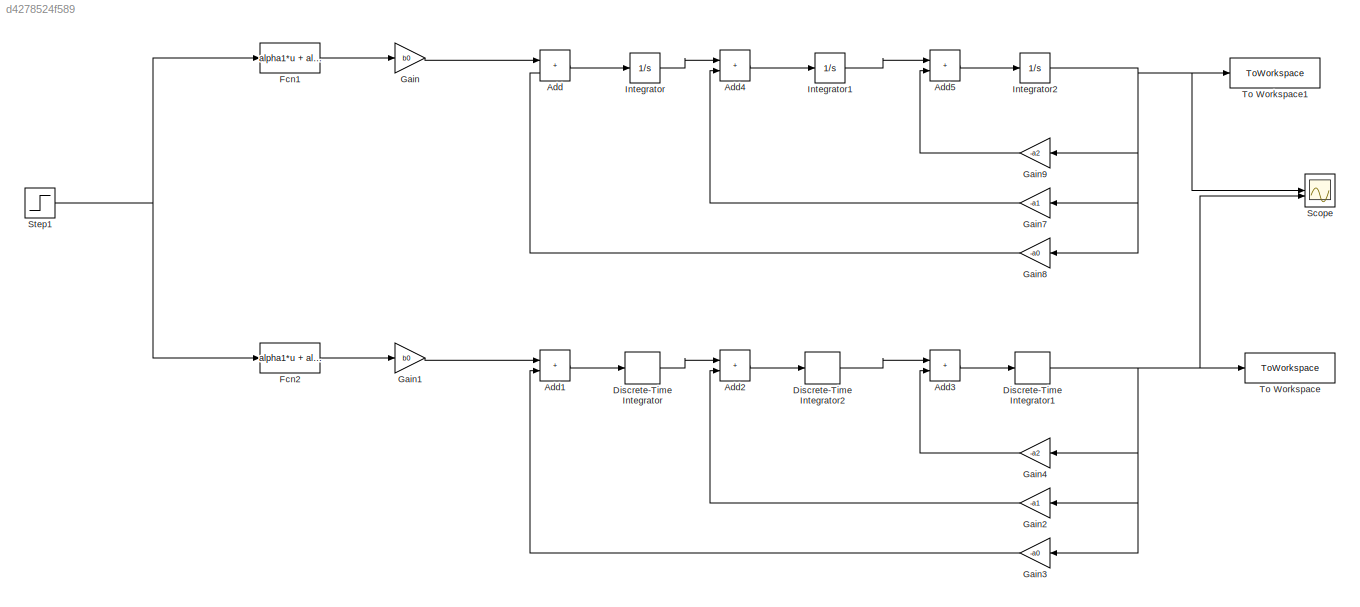
MODEL slx_d4278524f589
KIND model
CONFIG AbsTol = auto
CONFIG EnableMultiTasking = off
CONFIG FixedStep = auto
CONFIG MaxStep = auto
CONFIG MinStep = auto
CONFIG RelTol = 1e-3
CONFIG SampleTimeConstraint = Unconstrained
CONFIG SolverName = VariableStepAuto
CONFIG StartTime = 0.0
CONFIG StopTime = 200
BLOCK [Sum] Add
  IconShape = rectangular
BLOCK [Sum] Add1
  IconShape = rectangular
BLOCK [Sum] Add2
  IconShape = rectangular
BLOCK [Sum] Add3
  IconShape = rectangular
BLOCK [Sum] Add4
  IconShape = rectangular
BLOCK [Sum] Add5
  IconShape = rectangular
BLOCK [DiscreteIntegrator] Discrete-Time Integrator
  ICPrevOutput = DiscIntNeverNeededParam
  ICPrevScaledInput = DiscIntNeverNeededParam
  InitialConditionSetting = Auto
  SampleTime = T
BLOCK [DiscreteIntegrator] Discrete-Time Integrator1
  ICPrevOutput = DiscIntNeverNeededParam
  ICPrevScaledInput = DiscIntNeverNeededParam
  InitialConditionSetting = Auto
  SampleTime = T
BLOCK [DiscreteIntegrator] Discrete-Time Integrator2
  ICPrevOutput = DiscIntNeverNeededParam
  ICPrevScaledInput = DiscIntNeverNeededParam
  InitialConditionSetting = Auto
  SampleTime = T
BLOCK [Fcn] Fcn1
  Expr = alpha1*u + alpha2*u^2 + alpha3*u^3 + alpha4*u^4
BLOCK [Fcn] Fcn2
  Expr = alpha1*u + alpha2*u^2 + alpha3*u^3 + alpha4*u^4
BLOCK [Gain] Gain
  Gain = b0
BLOCK [Gain] Gain1
  Gain = b0
BLOCK [Gain] Gain2
  Gain = -a1
  NameLocation = top
BLOCK [Gain] Gain3
  Gain = -a0
  NameLocation = top
BLOCK [Gain] Gain4
  Gain = -a2
  NameLocation = top
BLOCK [Gain] Gain7
  Gain = -a1
  NameLocation = top
BLOCK [Gain] Gain8
  Gain = -a0
  NameLocation = top
BLOCK [Gain] Gain9
  Gain = -a2
  NameLocation = top
BLOCK [Integrator] Integrator
BLOCK [Integrator] Integrator1
BLOCK [Integrator] Integrator2
BLOCK [Scope] Scope
  Floating = off
  NumInputPorts = 2
  ScopeSpecificationString = Simulink.scopes.TimeScopeBlockCfg('CurrentConfiguration', extmgr.ConfigurationSet(extmgr.Configuration('Core','General UI',true),extmgr.Configuration('Core','Source UI',true),extmgr.Configuration('Sources','WiredSimulink',true),extmgr.Configuration('Visuals','Time Domain',true,'SerializedDisplays',{struct('MinYLimReal','-0.6237','MaxYLimReal','0.0693','YLabelReal','','MinYLimMag','0.00000','MaxYLi...<+1380ch>
BLOCK [Step] Step1
  SampleTime = 0
BLOCK [ToWorkspace] To Workspace
  FixptAsFi = on
  MaxDataPoints = inf
  SampleTime = 0.001
  SaveFormat = Structure With Time
  VariableName = simout
BLOCK [ToWorkspace] To Workspace1
  FixptAsFi = on
  MaxDataPoints = inf
  SampleTime = -1
  SaveFormat = Structure With Time
  VariableName = simout1
LINE Add1:1 -> Discrete-Time Integrator:1
LINE Add2:1 -> Discrete-Time Integrator2:1
LINE Add3:1 -> Discrete-Time Integrator1:1
LINE Add4:1 -> Integrator1:1
LINE Add5:1 -> Integrator2:1
LINE Add:1 -> Integrator:1
NET Discrete-Time Integrator1:1 -> Gain2:1, Gain3:1, Gain4:1, Scope:2, To Workspace:1
LINE Discrete-Time Integrator2:1 -> Add3:1
LINE Discrete-Time Integrator:1 -> Add2:1
LINE Fcn1:1 -> Gain:1
LINE Fcn2:1 -> Gain1:1
LINE Gain1:1 -> Add1:1
LINE Gain2:1 -> Add2:2
LINE Gain3:1 -> Add1:2
LINE Gain4:1 -> Add3:2
LINE Gain7:1 -> Add4:2
LINE Gain8:1 -> Add:2
LINE Gain9:1 -> Add5:2
LINE Gain:1 -> Add:1
LINE Integrator1:1 -> Add5:1
NET Integrator2:1 -> Gain7:1, Gain8:1, Gain9:1, Scope:1, To Workspace1:1
LINE Integrator:1 -> Add4:1
NET Step1:1 -> Fcn1:1, Fcn2:1
note: NET lines group one-source signal fan-out (src -> all destinations, sorted); 1:1 wires keep LINE
